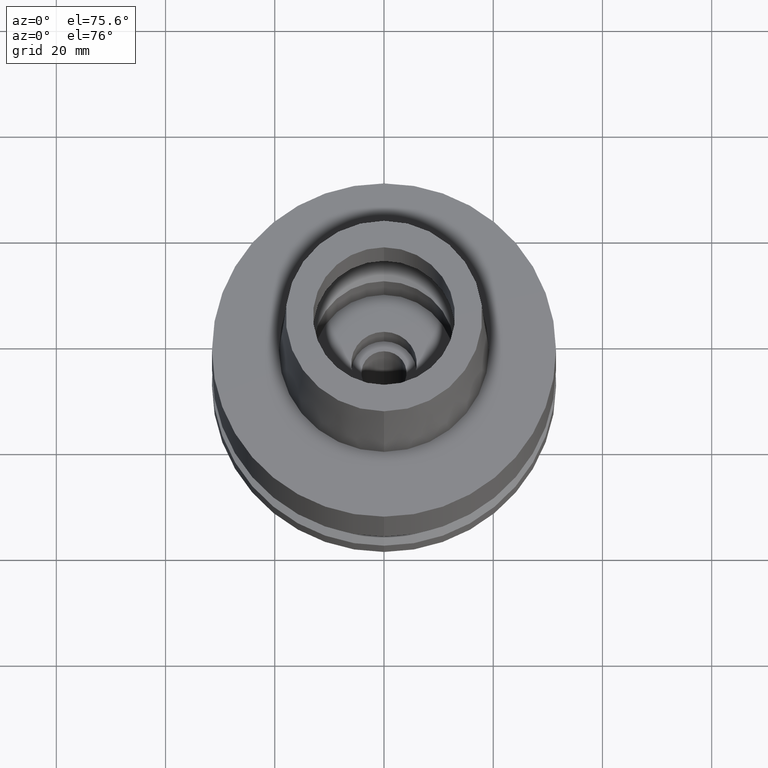
[diagram: clean part render]
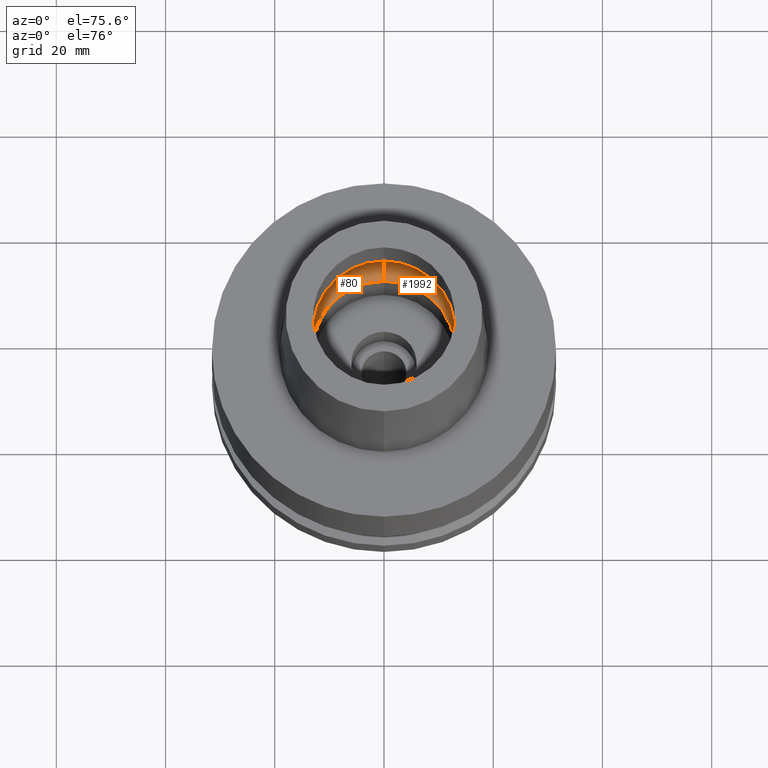
[diagram: same view with one multi-face feature highlighted, each face labeled with its STEP entity id]
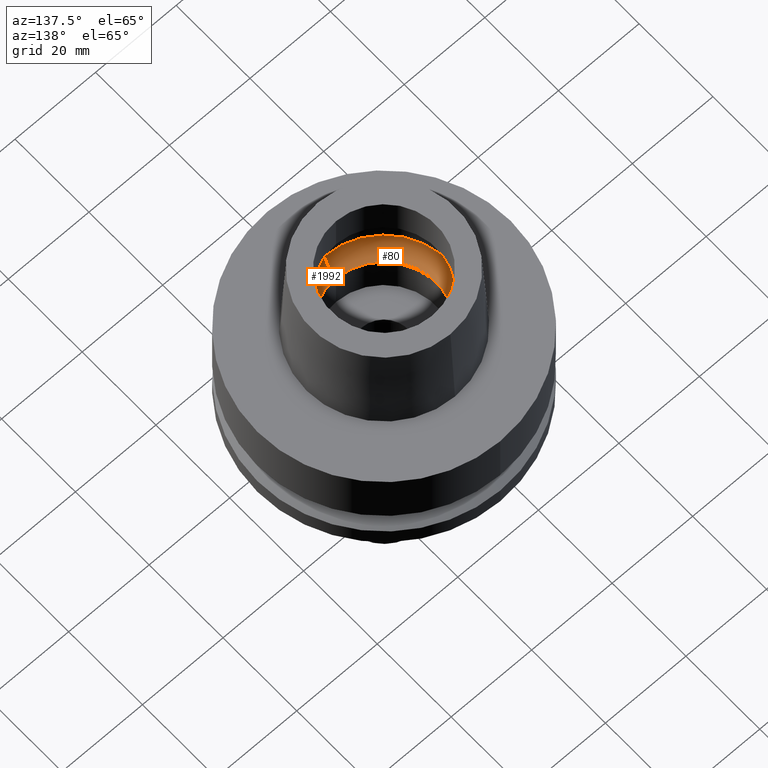
[diagram: same view with one multi-face feature highlighted, each face labeled with its STEP entity id]
A machine part, auxiliary view. The highlighted faces form ONE feature: a constant-radius fillet chain: 2 tangent blend faces with common blend radius 6 mm. The faces share edges in the B-rep.
A second angle (auxiliary view) of the same feature is appended — it is thin or edge-on in the first view.
Their STEP definitions:
[1] entity #1992 (Torus):
#146 = CARTESIAN_POINT ( 'NONE',  ( 0.0000000000000000000, -10.00000000000000000, 5.245999999999999552 ) ) ;
#241 = CARTESIAN_POINT ( 'NONE',  ( 0.0000000000000000000, 1.288891770231000090E-14, 5.245999999999999552 ) ) ;
#305 = EDGE_CURVE ( 'NONE', #414, #504, #2259, .T. ) ;
#393 = CARTESIAN_POINT ( 'NONE',  ( 0.0000000000000000000, 1.288891770231000090E-14, 5.245999999999999552 ) ) ;
#414 = VERTEX_POINT ( 'NONE', #1593 ) ;
#504 = VERTEX_POINT ( 'NONE', #1025 ) ;
#509 = CIRCLE ( 'NONE', #2572, 16.00000000000000000 ) ;
#633 = EDGE_CURVE ( 'NONE', #2384, #1398, #509, .T. ) ;
#662 = CARTESIAN_POINT ( 'NONE',  ( 0.0000000000000000000, 1.288891770231000090E-14, 0.04984757729336999899 ) ) ;
#671 = DIRECTION ( 'NONE',  ( 0.0000000000000000000, -1.000000000000000000, 0.0000000000000000000 ) ) ;
#681 = DIRECTION ( 'NONE',  ( 0.0000000000000000000, 1.000000000000000000, 0.0000000000000000000 ) ) ;
#729 = CIRCLE ( 'NONE', #782, 6.000000000000000000 ) ;
#767 = ORIENTED_EDGE ( 'NONE', *, *, #633, .F. ) ;
#782 = AXIS2_PLACEMENT_3D ( 'NONE', #146, #1594, #1382 ) ;
#789 = ORIENTED_EDGE ( 'NONE', *, *, #2159, .F. ) ;
#825 = ORIENTED_EDGE ( 'NONE', *, *, #305, .F. ) ;
#875 = CARTESIAN_POINT ( 'NONE',  ( 0.0000000000000000000, -16.00000000000000000, 5.245999999999999552 ) ) ;
#922 = DIRECTION ( 'NONE',  ( 1.000000000000000000, 0.0000000000000000000, 0.0000000000000000000 ) ) ;
#946 = EDGE_LOOP ( 'NONE', ( #825, #2649, #767, #789 ) ) ;
#1013 = DIRECTION ( 'NONE',  ( 0.0000000000000000000, 0.0000000000000000000, -1.000000000000000000 ) ) ;
#1025 = CARTESIAN_POINT ( 'NONE',  ( 0.0000000000000000000, 13.00000000000000000, 0.04984757729336999899 ) ) ;
#1237 = CARTESIAN_POINT ( 'NONE',  ( 0.0000000000000000000, 16.00000000000000000, 5.245999999999999552 ) ) ;
#1296 = CIRCLE ( 'NONE', #2271, 6.000000000000000000 ) ;
#1382 = DIRECTION ( 'NONE',  ( 0.0000000000000000000, -0.5000000000000169864, -0.8660254037844289376 ) ) ;
#1391 = FACE_OUTER_BOUND ( 'NONE', #946, .T. ) ;
#1398 = VERTEX_POINT ( 'NONE', #875 ) ;
#1516 = DIRECTION ( 'NONE',  ( 0.0000000000000000000, 0.0000000000000000000, -1.000000000000000000 ) ) ;
#1543 = DIRECTION ( 'NONE',  ( 0.0000000000000000000, 0.5000000000000169864, -0.8660254037844289376 ) ) ;
#1593 = CARTESIAN_POINT ( 'NONE',  ( 0.0000000000000000000, -13.00000000000000000, 0.04984757729336999899 ) ) ;
#1594 = DIRECTION ( 'NONE',  ( -1.000000000000000000, 0.0000000000000000000, 0.0000000000000000000 ) ) ;
#1732 = TOROIDAL_SURFACE ( 'NONE', #1918, 10.00000000000000000, 6.000000000000000000 ) ;
#1808 = CARTESIAN_POINT ( 'NONE',  ( 0.0000000000000000000, 10.00000000000000000, 5.245999999999999552 ) ) ;
#1918 = AXIS2_PLACEMENT_3D ( 'NONE', #241, #1516, #2311 ) ;
#1992 = ADVANCED_FACE ( 'NONE', ( #1391 ), #1732, .F. ) ;
#2149 = EDGE_CURVE ( 'NONE', #414, #1398, #729, .T. ) ;
#2157 = DIRECTION ( 'NONE',  ( 0.0000000000000000000, 0.0000000000000000000, 1.000000000000000000 ) ) ;
#2159 = EDGE_CURVE ( 'NONE', #504, #2384, #1296, .T. ) ;
#2259 = CIRCLE ( 'NONE', #2612, 13.00000000000000000 ) ;
#2271 = AXIS2_PLACEMENT_3D ( 'NONE', #1808, #922, #1543 ) ;
#2311 = DIRECTION ( 'NONE',  ( 0.0000000000000000000, -1.000000000000000000, 0.0000000000000000000 ) ) ;
#2384 = VERTEX_POINT ( 'NONE', #1237 ) ;
#2572 = AXIS2_PLACEMENT_3D ( 'NONE', #393, #1013, #681 ) ;
#2612 = AXIS2_PLACEMENT_3D ( 'NONE', #662, #2157, #671 ) ;
#2649 = ORIENTED_EDGE ( 'NONE', *, *, #2149, .T. ) ;
[2] entity #80 (Torus):
#54 = AXIS2_PLACEMENT_3D ( 'NONE', #1560, #524, #127 ) ;
#80 = ADVANCED_FACE ( 'NONE', ( #1484 ), #2483, .F. ) ;
#93 = CIRCLE ( 'NONE', #54, 16.00000000000000000 ) ;
#127 = DIRECTION ( 'NONE',  ( 0.0000000000000000000, -1.000000000000000000, 0.0000000000000000000 ) ) ;
#146 = CARTESIAN_POINT ( 'NONE',  ( 0.0000000000000000000, -10.00000000000000000, 5.245999999999999552 ) ) ;
#197 = ORIENTED_EDGE ( 'NONE', *, *, #2159, .T. ) ;
#341 = AXIS2_PLACEMENT_3D ( 'NONE', #1414, #1004, #1056 ) ;
#414 = VERTEX_POINT ( 'NONE', #1593 ) ;
#504 = VERTEX_POINT ( 'NONE', #1025 ) ;
#524 = DIRECTION ( 'NONE',  ( 0.0000000000000000000, 0.0000000000000000000, -1.000000000000000000 ) ) ;
#729 = CIRCLE ( 'NONE', #782, 6.000000000000000000 ) ;
#782 = AXIS2_PLACEMENT_3D ( 'NONE', #146, #1594, #1382 ) ;
#875 = CARTESIAN_POINT ( 'NONE',  ( 0.0000000000000000000, -16.00000000000000000, 5.245999999999999552 ) ) ;
#922 = DIRECTION ( 'NONE',  ( 1.000000000000000000, 0.0000000000000000000, 0.0000000000000000000 ) ) ;
#1004 = DIRECTION ( 'NONE',  ( 0.0000000000000000000, 0.0000000000000000000, 1.000000000000000000 ) ) ;
#1025 = CARTESIAN_POINT ( 'NONE',  ( 0.0000000000000000000, 13.00000000000000000, 0.04984757729336999899 ) ) ;
#1033 = EDGE_CURVE ( 'NONE', #504, #414, #1911, .T. ) ;
#1056 = DIRECTION ( 'NONE',  ( 0.0000000000000000000, 1.000000000000000000, 0.0000000000000000000 ) ) ;
#1064 = DIRECTION ( 'NONE',  ( 0.0000000000000000000, -1.000000000000000000, 0.0000000000000000000 ) ) ;
#1080 = DIRECTION ( 'NONE',  ( 0.0000000000000000000, 0.0000000000000000000, -1.000000000000000000 ) ) ;
#1237 = CARTESIAN_POINT ( 'NONE',  ( 0.0000000000000000000, 16.00000000000000000, 5.245999999999999552 ) ) ;
#1279 = EDGE_LOOP ( 'NONE', ( #1777, #1427, #1457, #197 ) ) ;
#1296 = CIRCLE ( 'NONE', #2271, 6.000000000000000000 ) ;
#1382 = DIRECTION ( 'NONE',  ( 0.0000000000000000000, -0.5000000000000169864, -0.8660254037844289376 ) ) ;
#1398 = VERTEX_POINT ( 'NONE', #875 ) ;
#1414 = CARTESIAN_POINT ( 'NONE',  ( 0.0000000000000000000, 1.288891770231000090E-14, 0.04984757729336999899 ) ) ;
#1427 = ORIENTED_EDGE ( 'NONE', *, *, #2149, .F. ) ;
#1457 = ORIENTED_EDGE ( 'NONE', *, *, #1033, .F. ) ;
#1484 = FACE_OUTER_BOUND ( 'NONE', #1279, .T. ) ;
#1543 = DIRECTION ( 'NONE',  ( 0.0000000000000000000, 0.5000000000000169864, -0.8660254037844289376 ) ) ;
#1560 = CARTESIAN_POINT ( 'NONE',  ( 0.0000000000000000000, 1.288891770231000090E-14, 5.245999999999999552 ) ) ;
#1593 = CARTESIAN_POINT ( 'NONE',  ( 0.0000000000000000000, -13.00000000000000000, 0.04984757729336999899 ) ) ;
#1594 = DIRECTION ( 'NONE',  ( -1.000000000000000000, 0.0000000000000000000, 0.0000000000000000000 ) ) ;
#1777 = ORIENTED_EDGE ( 'NONE', *, *, #1905, .F. ) ;
#1808 = CARTESIAN_POINT ( 'NONE',  ( 0.0000000000000000000, 10.00000000000000000, 5.245999999999999552 ) ) ;
#1816 = AXIS2_PLACEMENT_3D ( 'NONE', #2530, #1080, #1064 ) ;
#1905 = EDGE_CURVE ( 'NONE', #1398, #2384, #93, .T. ) ;
#1911 = CIRCLE ( 'NONE', #341, 13.00000000000000000 ) ;
#2149 = EDGE_CURVE ( 'NONE', #414, #1398, #729, .T. ) ;
#2159 = EDGE_CURVE ( 'NONE', #504, #2384, #1296, .T. ) ;
#2271 = AXIS2_PLACEMENT_3D ( 'NONE', #1808, #922, #1543 ) ;
#2384 = VERTEX_POINT ( 'NONE', #1237 ) ;
#2483 = TOROIDAL_SURFACE ( 'NONE', #1816, 10.00000000000000000, 6.000000000000000000 ) ;
#2530 = CARTESIAN_POINT ( 'NONE',  ( 0.0000000000000000000, 1.288891770231000090E-14, 5.245999999999999552 ) ) ;